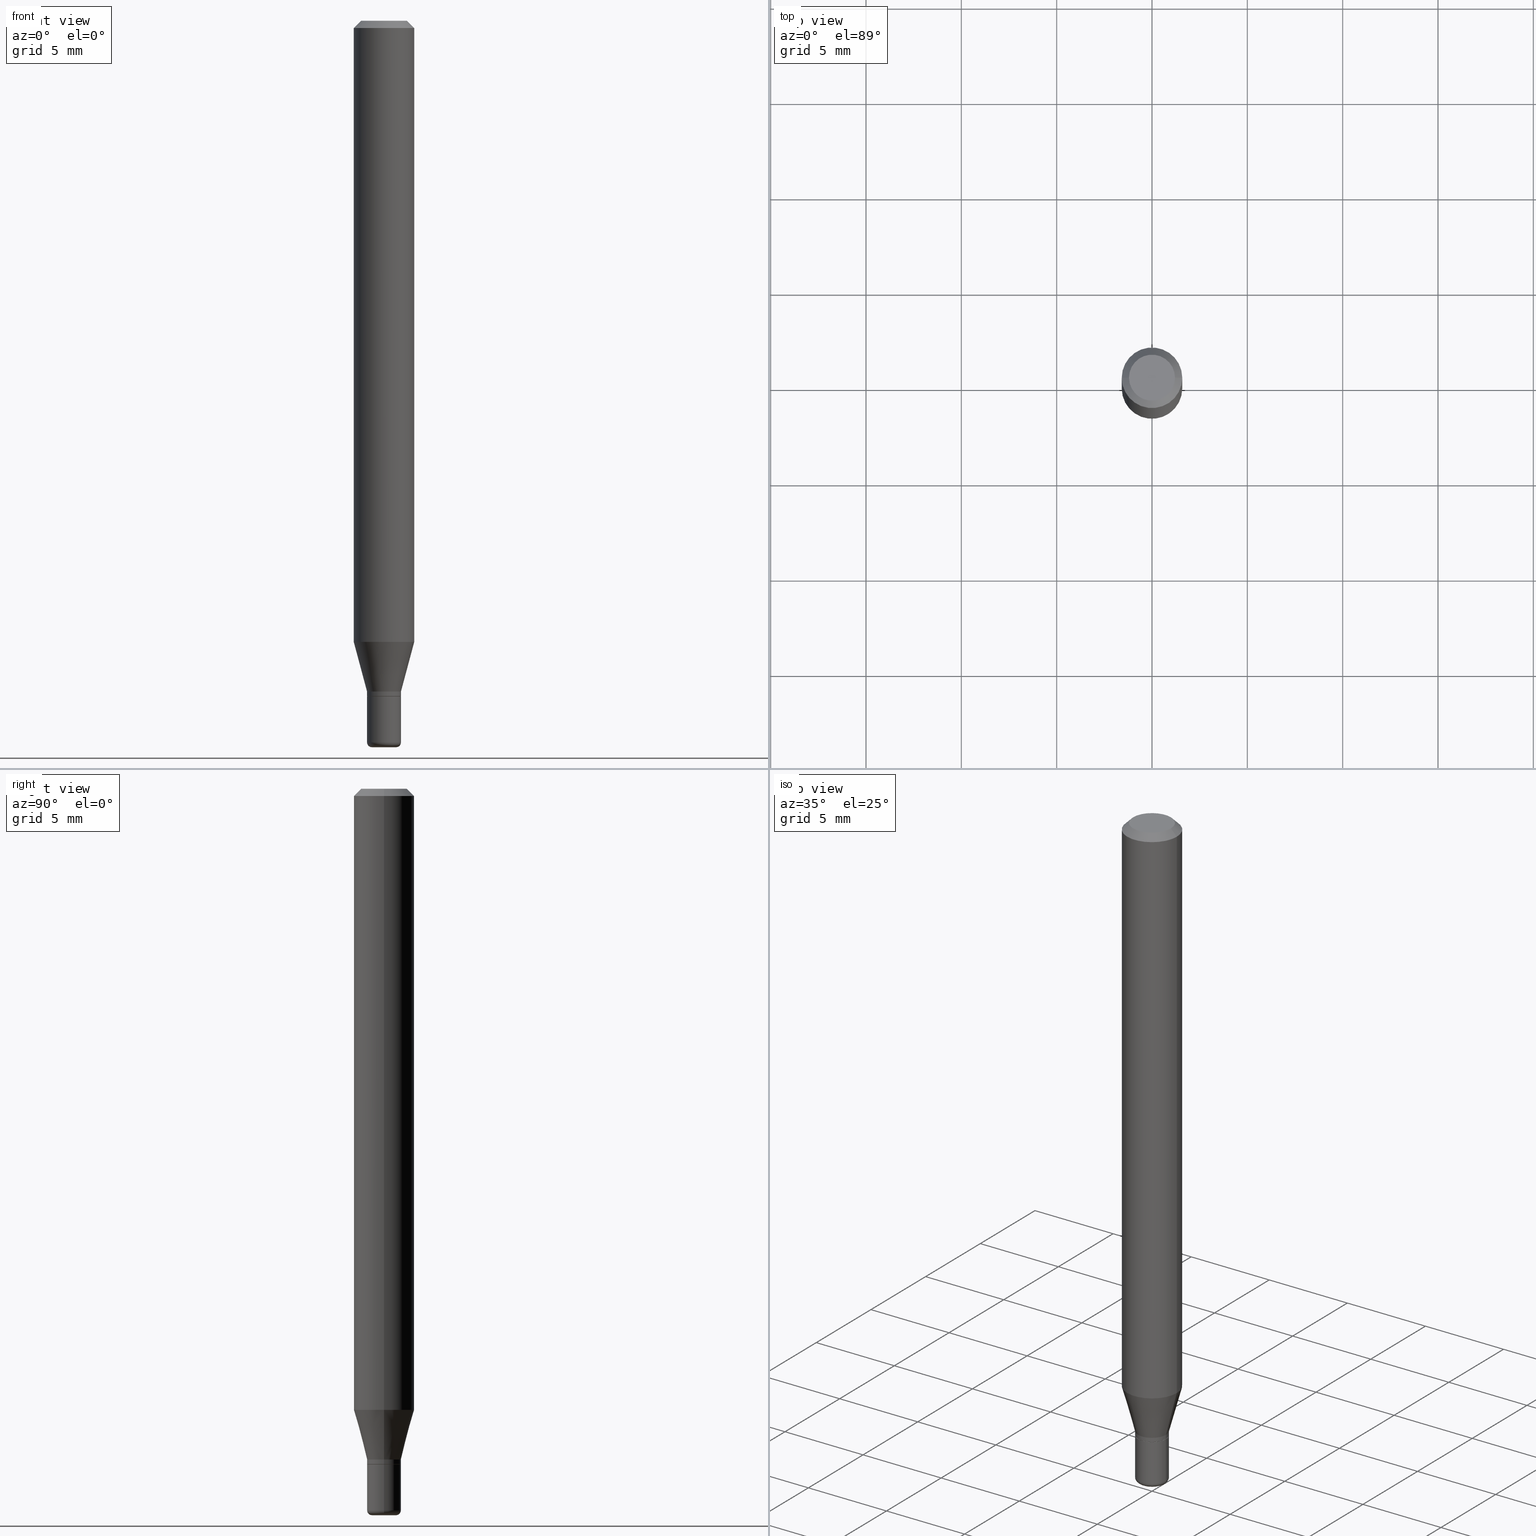
[diagram: canonical four-view strip — front | top / right | iso, engineering-drawing reading convention]
A machine part, canonical four-view strip (front | top / right | iso — engineering-drawing reading convention). The complete STEP part file that produces these views, byte-faithful:
ISO-10303-21;
HEADER;
FILE_DESCRIPTION (( 'STEP AP203' ),
    '1' );
FILE_NAME ('09032.STEP',
    '2024-02-29T21:27:11',
    ( '' ),
    ( '' ),
    'SwSTEP 2.0',
    'SolidWorks 2023',
    '' );
FILE_SCHEMA (( 'CONFIG_CONTROL_DESIGN' ));
ENDSEC;

DATA;
#1 = FACE_OUTER_BOUND ( 'NONE', #122, .T. ) ;
#2 = VERTEX_POINT ( 'NONE', #63 ) ;
#3 = APPLICATION_CONTEXT ( 'configuration controlled 3d designs of mechanical parts and assemblies' ) ;
#4 = ORIENTED_EDGE ( 'NONE', *, *, #260, .F. ) ;
#5 = EDGE_LOOP ( 'NONE', ( #254, #87 ) ) ;
#6 = DIRECTION ( 'NONE',  ( -2.445468806185136597E-29, 3.491481338843145583E-15, 1.000000000000000000 ) ) ;
#7 = DIRECTION ( 'NONE',  ( 1.000000000000000000, -6.982962677686253300E-15, 0.000000000000000000 ) ) ;
#8 = AXIS2_PLACEMENT_3D ( 'NONE', #356, #49, #236 ) ;
#9 = EDGE_LOOP ( 'NONE', ( #506, #295, #185, #302 ) ) ;
#10 = APPROVAL_STATUS ( 'not_yet_approved' ) ;
#11 = ADVANCED_FACE ( 'NONE', ( #181 ), #218, .T. ) ;
#12 = ORIENTED_EDGE ( 'NONE', *, *, #138, .T. ) ;
#13 = UNCERTAINTY_MEASURE_WITH_UNIT (LENGTH_MEASURE( 1.000000000000000082E-05 ), #478, 'distance_accuracy_value', 'NONE');
#14 = EDGE_LOOP ( 'NONE', ( #373, #55, #417, #451 ) ) ;
#15 = APPROVAL_ROLE ( '' ) ;
#16 = LINE ( 'NONE', #61, #115 ) ;
#17 = VECTOR ( 'NONE', #29, 39.37007874015748143 ) ;
#18 = ORIENTED_EDGE ( 'NONE', *, *, #382, .F. ) ;
#19 = SECURITY_CLASSIFICATION ( '', '', #215 ) ;
#20 = EDGE_CURVE ( 'NONE', #408, #93, #167, .T. ) ;
#21 = CARTESIAN_POINT ( 'NONE',  ( 0.03500000000000000333, -5.115020161405208194E-15, -1.395000000000000018 ) ) ;
#22 = CARTESIAN_POINT ( 'NONE',  ( 3.668203209277632395E-31, -5.237222008264614861E-17, -0.01499999999999970281 ) ) ;
#23 = DATE_AND_TIME ( #300, #242 ) ;
#24 = DIRECTION ( 'NONE',  ( -2.445468806185136597E-29, 3.491481338843145583E-15, 1.000000000000000000 ) ) ;
#25 = ORIENTED_EDGE ( 'NONE', *, *, #349, .T. ) ;
#26 = AXIS2_PLACEMENT_3D ( 'NONE', #283, #121, #440 ) ;
#27 = AXIS2_PLACEMENT_3D ( 'NONE', #38, #274, #40 ) ;
#28 = DIRECTION ( 'NONE',  ( 1.000000000000000000, -6.982962677686259611E-15, 4.883557194083110659E-29 ) ) ;
#29 = DIRECTION ( 'NONE',  ( 0.7071067811866199593, -2.468850131083015945E-15, 0.7071067811864750752 ) ) ;
#30 = CC_DESIGN_PERSON_AND_ORGANIZATION_ASSIGNMENT ( #455, #336, ( #393 ) ) ;
#31 = CARTESIAN_POINT ( 'NONE',  ( 0.000000000000000000, 0.000000000000000000, 0.000000000000000000 ) ) ;
#32 = CYLINDRICAL_SURFACE ( 'NONE', #485, 0.03499999999999998251 ) ;
#33 = DIRECTION ( 'NONE',  ( 1.000000000000000000, -6.982962677686266711E-15, 4.876176775795935793E-29 ) ) ;
#34 = CARTESIAN_POINT ( 'NONE',  ( 0.06250000000000000000, -4.913801213521515384E-15, -1.282368602791855938 ) ) ;
#35 = CLOSED_SHELL ( 'NONE', ( #101, #516, #421, #444, #437, #497 ) ) ;
#36 = CIRCLE ( 'NONE', #410, 0.03499999999999994782 ) ;
#37 = EDGE_CURVE ( 'NONE', #459, #304, #36, .T. ) ;
#38 = CARTESIAN_POINT ( 'NONE',  ( 2.444036937190534432E-16, 0.03499999999999513223, -1.395000000000000018 ) ) ;
#39 = DIRECTION ( 'NONE',  ( 1.000000000000000000, -6.982962677686280910E-15, 0.000000000000000000 ) ) ;
#40 = DIRECTION ( 'NONE',  ( -1.000000000000000000, 6.982962677686265922E-15, -4.876176775795935793E-29 ) ) ;
#41 = CARTESIAN_POINT ( 'NONE',  ( 0.03449999999999997513, -5.111528680066364398E-15, -1.395000000000000018 ) ) ;
#42 = COORDINATED_UNIVERSAL_TIME_OFFSET ( 5, 0, .BEHIND. ) ;
#43 = DIRECTION ( 'NONE',  ( 1.000000000000000000, -6.982962677686268288E-15, 0.000000000000000000 ) ) ;
#44 = LENGTH_MEASURE_WITH_UNIT ( LENGTH_MEASURE( 0.02539999999999999897 ), #205 );
#45 = AXIS2_PLACEMENT_3D ( 'NONE', #210, #94, #351 ) ;
#46 = FACE_OUTER_BOUND ( 'NONE', #130, .T. ) ;
#47 = ORIENTED_EDGE ( 'NONE', *, *, #95, .T. ) ;
#48 = CC_DESIGN_PERSON_AND_ORGANIZATION_ASSIGNMENT ( #447, #89, ( #67 ) ) ;
#49 = DIRECTION ( 'NONE',  ( 0.000000000000000000, 0.000000000000000000, 1.000000000000000000 ) ) ;
#50 = ADVANCED_FACE ( 'NONE', ( #337 ), #391, .T. ) ;
#51 = EDGE_CURVE ( 'NONE', #301, #212, #504, .T. ) ;
#52 = AXIS2_PLACEMENT_3D ( 'NONE', #355, #346, #74 ) ;
#53 = DIRECTION ( 'NONE',  ( 7.105427357601001859E-15, 1.000000000000000000, -3.491481338843145583E-15 ) ) ;
#54 = VECTOR ( 'NONE', #154, 39.37007874015748143 ) ;
#55 = ORIENTED_EDGE ( 'NONE', *, *, #166, .F. ) ;
#56 = APPROVAL_DATE_TIME ( #120, #466 ) ;
#57 = ORIENTED_EDGE ( 'NONE', *, *, #85, .F. ) ;
#58 = ORIENTED_EDGE ( 'NONE', *, *, #252, .T. ) ;
#59 = ADVANCED_FACE ( 'NONE', ( #148 ), #78, .T. ) ;
#60 = PERSON_AND_ORGANIZATION ( #308, #184 ) ;
#61 = CARTESIAN_POINT ( 'NONE',  ( -0.03499999999999998251, 2.486899575160349408E-16, -1.721627281589216057E-30 ) ) ;
#62 = VECTOR ( 'NONE', #80, 39.37007874015748143 ) ;
#63 = CARTESIAN_POINT ( 'NONE',  ( 0.04750000000000000749, -4.035134999187568762E-16, 2.731847993664288856E-16 ) ) ;
#64 = EDGE_LOOP ( 'NONE', ( #135, #103, #282, #90 ) ) ;
#65 = DIRECTION ( 'NONE',  ( 1.000000000000000000, -6.982962677686266711E-15, 4.876176775795935793E-29 ) ) ;
#66 = DIRECTION ( 'NONE',  ( 1.000000000000000000, -6.982962677686276966E-15, 0.000000000000000000 ) ) ;
#67 = PRODUCT_DEFINITION ( 'UNKNOWN', '', #393, #507 ) ;
#68 = DIRECTION ( 'NONE',  ( -2.445468806185136597E-29, 3.491481338843145583E-15, 1.000000000000000000 ) ) ;
#69 = TOROIDAL_SURFACE ( 'NONE', #463, 0.02500000000000000139, 0.009999999999999948166 ) ;
#70 = AXIS2_PLACEMENT_3D ( 'NONE', #234, #389, #66 ) ;
#71 = CARTESIAN_POINT ( 'NONE',  ( 0.03499999999999997558, -5.113274420735786690E-15, -1.394500000000000073 ) ) ;
#72 = CARTESIAN_POINT ( 'NONE',  ( 0.000000000000000000, 0.000000000000000000, 0.000000000000000000 ) ) ;
#73 = DIRECTION ( 'NONE',  ( -2.445468806185136597E-29, 3.491481338843145583E-15, 1.000000000000000000 ) ) ;
#74 = DIRECTION ( 'NONE',  ( 1.000000000000000000, -6.982962677686266711E-15, 4.852736867747365086E-29 ) ) ;
#75 = EDGE_CURVE ( 'NONE', #340, #408, #353, .T. ) ;
#76 = DIRECTION ( 'NONE',  ( -2.445468806185136597E-29, 3.491481338843145583E-15, 1.000000000000000000 ) ) ;
#77 = DIRECTION ( 'NONE',  ( -2.445468806185136877E-29, 3.491481338843145188E-15, 1.000000000000000000 ) ) ;
#78 = CONICAL_SURFACE ( 'NONE', #494, 0.03499999999999998251, 0.2617993877991494633 ) ;
#79 = APPROVAL_PERSON_ORGANIZATION ( #162, #466, #280 ) ;
#80 = DIRECTION ( 'NONE',  ( -2.445468806185136877E-29, 3.491481338843145188E-15, 1.000000000000000000 ) ) ;
#81 = FACE_OUTER_BOUND ( 'NONE', #299, .T. ) ;
#82 = COORDINATED_UNIVERSAL_TIME_OFFSET ( 5, 0, .BEHIND. ) ;
#83 = AXIS2_PLACEMENT_3D ( 'NONE', #465, #188, #267 ) ;
#84 = ORIENTED_EDGE ( 'NONE', *, *, #344, .F. ) ;
#85 = EDGE_CURVE ( 'NONE', #304, #459, #464, .T. ) ;
#86 = CALENDAR_DATE ( 2024, 29, 2 ) ;
#87 = ORIENTED_EDGE ( 'NONE', *, *, #382, .T. ) ;
#88 = ADVANCED_FACE ( 'NONE', ( #469 ), #223, .T. ) ;
#89 = PERSON_AND_ORGANIZATION_ROLE ( 'creator' ) ;
#90 = ORIENTED_EDGE ( 'NONE', *, *, #37, .F. ) ;
#91 = AXIS2_PLACEMENT_3D ( 'NONE', #401, #367, #7 ) ;
#92 = CC_DESIGN_APPROVAL ( #466, ( #393 ) ) ;
#93 = VERTEX_POINT ( 'NONE', #424 ) ;
#94 = DIRECTION ( 'NONE',  ( 2.445468806185136597E-29, -3.491481338843145583E-15, -1.000000000000000000 ) ) ;
#95 = EDGE_CURVE ( 'NONE', #459, #212, #155, .T. ) ;
#96 = VERTEX_POINT ( 'NONE', #436 ) ;
#97 = ORIENTED_EDGE ( 'NONE', *, *, #457, .F. ) ;
#98 = CARTESIAN_POINT ( 'NONE',  ( 3.668203209277632395E-31, -5.237222008264614861E-17, -0.01499999999999970281 ) ) ;
#99 = COORDINATED_UNIVERSAL_TIME_OFFSET ( 5, 0, .BEHIND. ) ;
#100 = VERTEX_POINT ( 'NONE', #157 ) ;
#101 = ADVANCED_FACE ( 'NONE', ( #81 ), #69, .T. ) ;
#102 = DIRECTION ( 'NONE',  ( -2.445468806185136597E-29, 3.491481338843145583E-15, 1.000000000000000000 ) ) ;
#103 = ORIENTED_EDGE ( 'NONE', *, *, #136, .T. ) ;
#104 = LINE ( 'NONE', #508, #412 ) ;
#105 = CARTESIAN_POINT ( 'NONE',  ( 3.668203209277704895E-29, -5.237222008264718177E-15, -1.500000000000000222 ) ) ;
#106 = CIRCLE ( 'NONE', #333, 0.06250000000000000000 ) ;
#107 = TOROIDAL_SURFACE ( 'NONE', #352, 0.02500000000000000139, 0.009999999999999948166 ) ;
#108 = DIRECTION ( 'NONE',  ( 1.000000000000000000, -6.982962677686280910E-15, 0.000000000000000000 ) ) ;
#109 = EDGE_CURVE ( 'NONE', #139, #408, #198, .T. ) ;
#110 = CARTESIAN_POINT ( 'NONE',  ( -0.03499999999999998251, -4.310144266548890801E-15, -1.385000000000000009 ) ) ;
#111 = DIRECTION ( 'NONE',  ( -2.445468806185136597E-29, 3.491481338843145583E-15, 1.000000000000000000 ) ) ;
#112 = DIRECTION ( 'NONE',  ( -0.2588190451025207395, 5.211531920934546309E-15, 0.9659258262890682012 ) ) ;
#113 = DIRECTION ( 'NONE',  ( 1.000000000000000000, -6.982962677686266711E-15, 4.852736867747365086E-29 ) ) ;
#114 = CARTESIAN_POINT ( 'NONE',  ( -0.06250000000000000000, 3.840629472727455270E-16, -0.01499999999999970281 ) ) ;
#115 = VECTOR ( 'NONE', #374, 39.37007874015748143 ) ;
#116 = DIRECTION ( 'NONE',  ( -2.445468806185136597E-29, 3.491481338843145583E-15, 1.000000000000000000 ) ) ;
#117 = APPROVAL_STATUS ( 'not_yet_approved' ) ;
#118 = CARTESIAN_POINT ( 'NONE',  ( 0.000000000000000000, 0.000000000000000000, 0.000000000000000000 ) ) ;
#119 = ORIENTED_EDGE ( 'NONE', *, *, #415, .T. ) ;
#120 = DATE_AND_TIME ( #238, #370 ) ;
#121 = DIRECTION ( 'NONE',  ( -6.982962677686266711E-15, -1.000000000000000000, 3.491481338843145583E-15 ) ) ;
#122 = EDGE_LOOP ( 'NONE', ( #213, #249 ) ) ;
#123 = AXIS2_PLACEMENT_3D ( 'NONE', #481, #399, #43 ) ;
#124 = AXIS2_PLACEMENT_3D ( 'NONE', #409, #53, #342 ) ;
#125 = APPROVAL_ROLE ( '' ) ;
#126 = EDGE_CURVE ( 'NONE', #93, #408, #106, .T. ) ;
#127 = ORIENTED_EDGE ( 'NONE', *, *, #380, .T. ) ;
#128 = ADVANCED_BREP_SHAPE_REPRESENTATION ( '09032', ( #179, #358, #8 ), #403 ) ;
#129 = CARTESIAN_POINT ( 'NONE',  ( 0.000000000000000000, 0.000000000000000000, 0.000000000000000000 ) ) ;
#130 = EDGE_LOOP ( 'NONE', ( #164, #264, #453, #259 ) ) ;
#131 = DIRECTION ( 'NONE',  ( -2.445468806185136597E-29, 3.491481338843145583E-15, 1.000000000000000000 ) ) ;
#132 = ORIENTED_EDGE ( 'NONE', *, *, #349, .F. ) ;
#133 = PERSON_AND_ORGANIZATION_ROLE ( 'classification_officer' ) ;
#134 = CARTESIAN_POINT ( 'NONE',  ( 3.410206250225173110E-29, -4.868870727016767513E-15, -1.394500000000000073 ) ) ;
#135 = ORIENTED_EDGE ( 'NONE', *, *, #290, .F. ) ;
#136 = EDGE_CURVE ( 'NONE', #96, #204, #360, .T. ) ;
#137 = ORIENTED_EDGE ( 'NONE', *, *, #298, .F. ) ;
#138 = EDGE_CURVE ( 'NONE', #100, #199, #176, .T. ) ;
#139 = VERTEX_POINT ( 'NONE', #195 ) ;
#140 = AXIS2_PLACEMENT_3D ( 'NONE', #98, #499, #501 ) ;
#141 = AXIS2_PLACEMENT_3D ( 'NONE', #392, #354, #515 ) ;
#142 = ORIENTED_EDGE ( 'NONE', *, *, #85, .T. ) ;
#143 = EDGE_CURVE ( 'NONE', #289, #411, #235, .T. ) ;
#144 = CARTESIAN_POINT ( 'NONE',  ( 3.135992416158701602E-29, -4.477366046166122926E-15, -1.282368602791855938 ) ) ;
#145 = EDGE_LOOP ( 'NONE', ( #258, #127, #182, #491 ) ) ;
#146 = PRODUCT ( '09032', '09032', '', ( #287 ) ) ;
#147 = DIRECTION ( 'NONE',  ( -2.445468806185136597E-29, 3.491481338843145583E-15, 1.000000000000000000 ) ) ;
#148 = FACE_OUTER_BOUND ( 'NONE', #209, .T. ) ;
#149 = EDGE_CURVE ( 'NONE', #139, #217, #511, .T. ) ;
#150 = DIRECTION ( 'NONE',  ( -2.445468806185136877E-29, 3.491481338843145188E-15, 1.000000000000000000 ) ) ;
#151 = CARTESIAN_POINT ( 'NONE',  ( 3.643748521215853910E-29, -5.202307194876288105E-15, -1.490000000000000213 ) ) ;
#152 = VECTOR ( 'NONE', #316, 39.37007874015748143 ) ;
#153 = VECTOR ( 'NONE', #150, 39.37007874015748143 ) ;
#154 = DIRECTION ( 'NONE',  ( -0.7071067811866199593, 7.493145998870616062E-15, 0.7071067811864750752 ) ) ;
#155 = LINE ( 'NONE', #386, #368 ) ;
#156 = CARTESIAN_POINT ( 'NONE',  ( -6.680649051745406845E-45, 9.538196290434862081E-31, 2.731847993664263218E-16 ) ) ;
#157 = CARTESIAN_POINT ( 'NONE',  ( 0.03499999999999998251, -5.080105348016776545E-15, -1.385000000000000009 ) ) ;
#158 = DIRECTION ( 'NONE',  ( 1.000000000000000000, -6.982962677686265922E-15, 4.876176775795935793E-29 ) ) ;
#159 = CARTESIAN_POINT ( 'NONE',  ( -0.06250000000000000000, 4.440892098500626162E-16, -3.074334431409316114E-30 ) ) ;
#160 = CIRCLE ( 'NONE', #124, 0.009999999999999948166 ) ;
#161 = CONICAL_SURFACE ( 'NONE', #141, 0.03499999999999998251, 0.2617993877991494633 ) ;
#162 = PERSON_AND_ORGANIZATION ( #308, #184 ) ;
#163 = EDGE_LOOP ( 'NONE', ( #297, #362, #416, #202 ) ) ;
#164 = ORIENTED_EDGE ( 'NONE', *, *, #334, .T. ) ;
#165 = FACE_OUTER_BOUND ( 'NONE', #446, .T. ) ;
#166 = EDGE_CURVE ( 'NONE', #340, #2, #192, .T. ) ;
#167 = CIRCLE ( 'NONE', #326, 0.06250000000000000000 ) ;
#168 = AXIS2_PLACEMENT_3D ( 'NONE', #220, #111, #108 ) ;
#169 = APPROVAL_DATE_TIME ( #245, #406 ) ;
#170 = CARTESIAN_POINT ( 'NONE',  ( 3.411428984628265351E-29, -4.870616467686188228E-15, -1.395000000000000018 ) ) ;
#171 = EDGE_LOOP ( 'NONE', ( #372, #413 ) ) ;
#172 = ORIENTED_EDGE ( 'NONE', *, *, #228, .T. ) ;
#173 = ORIENTED_EDGE ( 'NONE', *, *, #268, .T. ) ;
#174 = PRODUCT_RELATED_PRODUCT_CATEGORY ( 'detail', '', ( #146 ) ) ;
#175 = AXIS2_PLACEMENT_3D ( 'NONE', #72, #310, #278 ) ;
#176 = CIRCLE ( 'NONE', #240, 0.03499999999999998251 ) ;
#177 = AXIS2_PLACEMENT_3D ( 'NONE', #488, #6, #324 ) ;
#178 = DIRECTION ( 'NONE',  ( -2.445468806185136597E-29, 3.491481338843145583E-15, 1.000000000000000000 ) ) ;
#179 = MANIFOLD_SOLID_BREP ( 'Body-Move/Copy2[1]', #35 ) ;
#180 = CARTESIAN_POINT ( 'NONE',  ( 0.03499999999999994782, -5.446710888595306494E-15, -1.490000000000000213 ) ) ;
#181 = FACE_OUTER_BOUND ( 'NONE', #9, .T. ) ;
#182 = ORIENTED_EDGE ( 'NONE', *, *, #126, .T. ) ;
#183 = AXIS2_PLACEMENT_3D ( 'NONE', #322, #237, #206 ) ;
#184 = ORGANIZATION ( 'UNSPECIFIED', 'UNSPECIFIED', '' ) ;
#185 = ORIENTED_EDGE ( 'NONE', *, *, #126, .F. ) ;
#186 = CARTESIAN_POINT ( 'NONE',  ( 0.03499999999999998251, -2.444036937190191771E-16, 1.706661871528576757E-30 ) ) ;
#187 = CARTESIAN_POINT ( 'NONE',  ( 3.135992416158701602E-29, -4.477366046166122926E-15, -1.282368602791855938 ) ) ;
#188 = DIRECTION ( 'NONE',  ( -2.438088387897960049E-29, 3.491481338843145188E-15, 1.000000000000000000 ) ) ;
#189 = DIRECTION ( 'NONE',  ( 1.000000000000000000, -6.982962677686265922E-15, 4.876176775795935793E-29 ) ) ;
#190 = LINE ( 'NONE', #513, #54 ) ;
#191 = LINE ( 'NONE', #312, #350 ) ;
#192 = CIRCLE ( 'NONE', #52, 0.04750000000000000749 ) ;
#193 = AXIS2_PLACEMENT_3D ( 'NONE', #319, #445, #158 ) ;
#194 = LINE ( 'NONE', #461, #251 ) ;
#195 = CARTESIAN_POINT ( 'NONE',  ( -0.06250000000000000000, -4.033276836316059521E-15, -1.282368602791855938 ) ) ;
#196 = CARTESIAN_POINT ( 'NONE',  ( -0.03449999999999997513, -4.622829996674842639E-15, -1.395000000000000018 ) ) ;
#197 = ADVANCED_FACE ( 'NONE', ( #388 ), #32, .T. ) ;
#198 = LINE ( 'NONE', #159, #152 ) ;
#199 = VERTEX_POINT ( 'NONE', #110 ) ;
#200 = PERSON_AND_ORGANIZATION ( #308, #184 ) ;
#201 = FACE_OUTER_BOUND ( 'NONE', #285, .T. ) ;
#202 = ORIENTED_EDGE ( 'NONE', *, *, #20, .F. ) ;
#203 =( NAMED_UNIT ( * ) SI_UNIT ( $, .STERADIAN. ) SOLID_ANGLE_UNIT ( ) );
#204 = VERTEX_POINT ( 'NONE', #514 ) ;
#205 =( LENGTH_UNIT ( ) NAMED_UNIT ( * ) SI_UNIT ( $, .METRE. ) );
#206 = DIRECTION ( 'NONE',  ( -1.000000000000000000, 6.982962677686265922E-15, -4.876176775795935793E-29 ) ) ;
#207 = ORIENTED_EDGE ( 'NONE', *, *, #143, .T. ) ;
#208 = LOCAL_TIME ( 16, 27, 11.00000000000000000, #414 ) ;
#209 = EDGE_LOOP ( 'NONE', ( #449, #119, #482, #331 ) ) ;
#210 = CARTESIAN_POINT ( 'NONE',  ( 3.668203209277632395E-31, -5.237222008264614861E-17, -0.01499999999999970281 ) ) ;
#211 = CC_DESIGN_PERSON_AND_ORGANIZATION_ASSIGNMENT ( #294, #256, ( #393 ) ) ;
#212 = VERTEX_POINT ( 'NONE', #227 ) ;
#213 = ORIENTED_EDGE ( 'NONE', *, *, #268, .F. ) ;
#214 = EDGE_CURVE ( 'NONE', #411, #292, #284, .T. ) ;
#215 = SECURITY_CLASSIFICATION_LEVEL ( 'unclassified' ) ;
#216 = CC_DESIGN_APPROVAL ( #406, ( #67 ) ) ;
#217 = VERTEX_POINT ( 'NONE', #34 ) ;
#218 = CYLINDRICAL_SURFACE ( 'NONE', #269, 0.06250000000000000000 ) ;
#219 = DIRECTION ( 'NONE',  ( -2.445468806185136597E-29, 3.491481338843145583E-15, 1.000000000000000000 ) ) ;
#220 = CARTESIAN_POINT ( 'NONE',  ( 3.386974296566414366E-29, -4.835701654297756579E-15, -1.385000000000000009 ) ) ;
#221 = AXIS2_PLACEMENT_3D ( 'NONE', #170, #329, #291 ) ;
#222 = CONICAL_SURFACE ( 'NONE', #177, 0.03449999999999997513, 0.7853981633975507526 ) ;
#223 = CYLINDRICAL_SURFACE ( 'NONE', #175, 0.06250000000000000000 ) ;
#224 = FACE_OUTER_BOUND ( 'NONE', #64, .T. ) ;
#225 = DIRECTION ( 'NONE',  ( 1.000000000000000000, -6.982962677686253300E-15, 0.000000000000000000 ) ) ;
#226 = CARTESIAN_POINT ( 'NONE',  ( 0.03499999999999998251, -5.080105348016776545E-15, -1.385000000000000009 ) ) ;
#227 = CARTESIAN_POINT ( 'NONE',  ( -0.03499999999999999639, -4.787771873765202881E-15, -1.395000000000000018 ) ) ;
#228 = EDGE_CURVE ( 'NONE', #199, #139, #191, .T. ) ;
#229 = FACE_OUTER_BOUND ( 'NONE', #489, .T. ) ;
#230 = CARTESIAN_POINT ( 'NONE',  ( 3.386974296566414366E-29, -4.835701654297756579E-15, -1.385000000000000009 ) ) ;
#231 = AXIS2_PLACEMENT_3D ( 'NONE', #151, #428, #271 ) ;
#232 = AXIS2_PLACEMENT_3D ( 'NONE', #156, #313, #113 ) ;
#233 = ADVANCED_FACE ( 'NONE', ( #314 ), #281, .T. ) ;
#234 = CARTESIAN_POINT ( 'NONE',  ( 3.411428984628265351E-29, -4.870616467686188228E-15, -1.395000000000000018 ) ) ;
#235 = LINE ( 'NONE', #41, #17 ) ;
#236 = DIRECTION ( 'NONE',  ( 1.000000000000000000, 0.000000000000000000, 0.000000000000000000 ) ) ;
#237 = DIRECTION ( 'NONE',  ( 2.438088387897960049E-29, -3.491481338843145188E-15, -1.000000000000000000 ) ) ;
#238 = CALENDAR_DATE ( 2024, 29, 2 ) ;
#239 = ADVANCED_FACE ( 'NONE', ( #201 ), #407, .F. ) ;
#240 = AXIS2_PLACEMENT_3D ( 'NONE', #348, #394, #39 ) ;
#241 = EDGE_LOOP ( 'NONE', ( #454, #266, #323, #404 ) ) ;
#242 = LOCAL_TIME ( 16, 27, 11.00000000000000000, #99 ) ;
#243 = DIRECTION ( 'NONE',  ( 1.000000000000000000, -6.982962677686266711E-15, 4.876176775795935793E-29 ) ) ;
#244 = ORIENTED_EDGE ( 'NONE', *, *, #473, .T. ) ;
#245 = DATE_AND_TIME ( #86, #443 ) ;
#246 = DIRECTION ( 'NONE',  ( 1.000000000000000000, -6.982962677686265922E-15, 4.876176775795935793E-29 ) ) ;
#247 = ORIENTED_EDGE ( 'NONE', *, *, #95, .F. ) ;
#248 = CYLINDRICAL_SURFACE ( 'NONE', #384, 0.03499999999999997558 ) ;
#249 = ORIENTED_EDGE ( 'NONE', *, *, #136, .F. ) ;
#250 = CIRCLE ( 'NONE', #123, 0.03449999999999997513 ) ;
#251 = VECTOR ( 'NONE', #277, 39.37007874015748143 ) ;
#252 = EDGE_CURVE ( 'NONE', #369, #289, #250, .T. ) ;
#253 = FACE_OUTER_BOUND ( 'NONE', #145, .T. ) ;
#254 = ORIENTED_EDGE ( 'NONE', *, *, #51, .T. ) ;
#255 = APPLICATION_CONTEXT ( 'configuration controlled 3d designs of mechanical parts and assemblies' ) ;
#256 = PERSON_AND_ORGANIZATION_ROLE ( 'design_supplier' ) ;
#257 = CARTESIAN_POINT ( 'NONE',  ( -0.03499999999999997558, -4.620180769500732227E-15, -1.394500000000000073 ) ) ;
#258 = ORIENTED_EDGE ( 'NONE', *, *, #473, .F. ) ;
#259 = ORIENTED_EDGE ( 'NONE', *, *, #143, .F. ) ;
#260 = EDGE_CURVE ( 'NONE', #204, #304, #418, .T. ) ;
#261 = AXIS2_PLACEMENT_3D ( 'NONE', #390, #116, #275 ) ;
#262 = AXIS2_PLACEMENT_3D ( 'NONE', #144, #102, #395 ) ;
#263 = CARTESIAN_POINT ( 'NONE',  ( 3.411428984628265351E-29, -4.870616467686188228E-15, -1.395000000000000018 ) ) ;
#264 = ORIENTED_EDGE ( 'NONE', *, *, #457, .T. ) ;
#265 = DIRECTION ( 'NONE',  ( 0.7071067811865479058, -7.319954787623257623E-15, -0.7071067811865471286 ) ) ;
#266 = ORIENTED_EDGE ( 'NONE', *, *, #298, .T. ) ;
#267 = DIRECTION ( 'NONE',  ( 1.000000000000000000, -6.982962677686265922E-15, 4.876176775795935793E-29 ) ) ;
#268 = EDGE_CURVE ( 'NONE', #204, #96, #317, .T. ) ;
#269 = AXIS2_PLACEMENT_3D ( 'NONE', #495, #378, #65 ) ;
#270 = CIRCLE ( 'NONE', #512, 0.03499999999999997558 ) ;
#271 = DIRECTION ( 'NONE',  ( 1.000000000000000000, -6.982962677686259611E-15, 0.000000000000000000 ) ) ;
#272 = FACE_OUTER_BOUND ( 'NONE', #338, .T. ) ;
#273 = DIRECTION ( 'NONE',  ( 1.000000000000000000, -6.982962677686266711E-15, 0.000000000000000000 ) ) ;
#274 = DIRECTION ( 'NONE',  ( 2.438088387897960049E-29, -3.491481338843145188E-15, -1.000000000000000000 ) ) ;
#275 = DIRECTION ( 'NONE',  ( 1.000000000000000000, -6.982962677686254089E-15, 0.000000000000000000 ) ) ;
#276 = ADVANCED_FACE ( 'NONE', ( #46 ), #450, .T. ) ;
#277 = DIRECTION ( 'NONE',  ( -2.445468806185136877E-29, 3.491481338843145188E-15, 1.000000000000000000 ) ) ;
#278 = DIRECTION ( 'NONE',  ( 1.000000000000000000, -6.982962677686266711E-15, 4.876176775795935793E-29 ) ) ;
#279 = VECTOR ( 'NONE', #433, 39.37007874015748143 ) ;
#280 = APPROVAL_ROLE ( '' ) ;
#281 = CYLINDRICAL_SURFACE ( 'NONE', #474, 0.03499999999999998251 ) ;
#282 = ORIENTED_EDGE ( 'NONE', *, *, #260, .T. ) ;
#283 = CARTESIAN_POINT ( 'NONE',  ( 0.02500000000000000139, -5.376881261818443984E-15, -1.490000000000000213 ) ) ;
#284 = CIRCLE ( 'NONE', #261, 0.03499999999999997558 ) ;
#285 = EDGE_LOOP ( 'NONE', ( #343, #244 ) ) ;
#286 = CIRCLE ( 'NONE', #262, 0.06250000000000000000 ) ;
#287 = MECHANICAL_CONTEXT ( 'NONE', #3, 'mechanical' ) ;
#288 = DIRECTION ( 'NONE',  ( -2.445468806185136597E-29, 3.491481338843145583E-15, 1.000000000000000000 ) ) ;
#289 = VERTEX_POINT ( 'NONE', #448 ) ;
#290 = EDGE_CURVE ( 'NONE', #96, #459, #160, .T. ) ;
#291 = DIRECTION ( 'NONE',  ( 1.000000000000000000, -6.982962677686268288E-15, 0.000000000000000000 ) ) ;
#292 = VERTEX_POINT ( 'NONE', #257 ) ;
#293 = EDGE_CURVE ( 'NONE', #292, #199, #16, .T. ) ;
#294 = PERSON_AND_ORGANIZATION ( #308, #184 ) ;
#295 = ORIENTED_EDGE ( 'NONE', *, *, #109, .T. ) ;
#296 = AXIS2_PLACEMENT_3D ( 'NONE', #263, #219, #420 ) ;
#297 = ORIENTED_EDGE ( 'NONE', *, *, #109, .F. ) ;
#298 = EDGE_CURVE ( 'NONE', #292, #411, #270, .T. ) ;
#299 = EDGE_LOOP ( 'NONE', ( #173, #441, #57, #4 ) ) ;
#300 = CALENDAR_DATE ( 2024, 29, 2 ) ;
#301 = VERTEX_POINT ( 'NONE', #21 ) ;
#302 = ORIENTED_EDGE ( 'NONE', *, *, #365, .F. ) ;
#303 = PLANE ( 'NONE',  #83 ) ;
#304 = VERTEX_POINT ( 'NONE', #180 ) ;
#305 = CC_DESIGN_DATE_AND_TIME_ASSIGNMENT ( #23, #339, ( #19 ) ) ;
#306 = FACE_OUTER_BOUND ( 'NONE', #171, .T. ) ;
#307 = CARTESIAN_POINT ( 'NONE',  ( 3.668203209277632395E-31, -5.237222008264614861E-17, -0.01499999999999970281 ) ) ;
#308 = PERSON ( 'UNSPECIFIED', 'UNSPECIFIED', 'UNSPECIFIED', ('UNSPECIFIED'), ('UNSPECIFIED'), ('UNSPECIFIED') ) ;
#309 = CARTESIAN_POINT ( 'NONE',  ( 0.03499999999999997558, -2.444036937190191771E-16, 1.706661871528576406E-30 ) ) ;
#310 = DIRECTION ( 'NONE',  ( -2.445468806185136597E-29, 3.491481338843145583E-15, 1.000000000000000000 ) ) ;
#311 = CARTESIAN_POINT ( 'NONE',  ( -0.03499999999999994782, -4.787771873765202881E-15, -1.490000000000000213 ) ) ;
#312 = CARTESIAN_POINT ( 'NONE',  ( -0.03499999999999998251, -4.587011696781721293E-15, -1.385000000000000009 ) ) ;
#313 = DIRECTION ( 'NONE',  ( -2.445468806185136597E-29, 3.491481338843145583E-15, 1.000000000000000000 ) ) ;
#314 = FACE_OUTER_BOUND ( 'NONE', #327, .T. ) ;
#315 = APPLICATION_PROTOCOL_DEFINITION ( 'international standard', 'config_control_design', 1994, #255 ) ;
#316 = DIRECTION ( 'NONE',  ( -2.445468806185136877E-29, 3.491481338843145188E-15, 1.000000000000000000 ) ) ;
#317 = CIRCLE ( 'NONE', #91, 0.02500000000000000486 ) ;
#318 = LOCAL_TIME ( 16, 27, 11.00000000000000000, #42 ) ;
#319 = CARTESIAN_POINT ( 'NONE',  ( 3.582686580359766038E-29, -5.359686688179453325E-15, -1.500000000000000222 ) ) ;
#320 = ADVANCED_FACE ( 'NONE', ( #253 ), #496, .T. ) ;
#321 = PERSON_AND_ORGANIZATION_ROLE ( 'design_owner' ) ;
#322 = CARTESIAN_POINT ( 'NONE',  ( 3.316907271900976589E-16, 0.04750000000000000749, -2.925296391183627249E-17 ) ) ;
#323 = ORIENTED_EDGE ( 'NONE', *, *, #325, .T. ) ;
#324 = DIRECTION ( 'NONE',  ( 1.000000000000000000, -6.982962677686268288E-15, 0.000000000000000000 ) ) ;
#325 = EDGE_CURVE ( 'NONE', #411, #100, #434, .T. ) ;
#326 = AXIS2_PLACEMENT_3D ( 'NONE', #22, #178, #456 ) ;
#327 = EDGE_LOOP ( 'NONE', ( #332, #487, #383, #422 ) ) ;
#328 = PLANE ( 'NONE',  #193 ) ;
#329 = DIRECTION ( 'NONE',  ( -2.445468806185136597E-29, 3.491481338843145583E-15, 1.000000000000000000 ) ) ;
#330 = CC_DESIGN_PERSON_AND_ORGANIZATION_ASSIGNMENT ( #200, #321, ( #146 ) ) ;
#331 = ORIENTED_EDGE ( 'NONE', *, *, #149, .F. ) ;
#332 = ORIENTED_EDGE ( 'NONE', *, *, #214, .T. ) ;
#333 = AXIS2_PLACEMENT_3D ( 'NONE', #307, #68, #273 ) ;
#334 = EDGE_CURVE ( 'NONE', #289, #369, #341, .T. ) ;
#335 = CIRCLE ( 'NONE', #168, 0.03499999999999998251 ) ;
#336 = PERSON_AND_ORGANIZATION_ROLE ( 'creator' ) ;
#337 = FACE_OUTER_BOUND ( 'NONE', #14, .T. ) ;
#338 = EDGE_LOOP ( 'NONE', ( #247, #460, #25, #18 ) ) ;
#339 = DATE_TIME_ROLE ( 'classification_date' ) ;
#340 = VERTEX_POINT ( 'NONE', #509 ) ;
#341 = CIRCLE ( 'NONE', #486, 0.03449999999999997513 ) ;
#342 = DIRECTION ( 'NONE',  ( -1.000000000000000000, 7.105427357600962416E-15, 0.000000000000000000 ) ) ;
#343 = ORIENTED_EDGE ( 'NONE', *, *, #166, .T. ) ;
#344 = EDGE_CURVE ( 'NONE', #217, #139, #286, .T. ) ;
#345 = DIRECTION ( 'NONE',  ( 1.000000000000000000, -6.982962677686268288E-15, 0.000000000000000000 ) ) ;
#346 = DIRECTION ( 'NONE',  ( -2.445468806185136597E-29, 3.491481338843145583E-15, 1.000000000000000000 ) ) ;
#347 = PLANE ( 'NONE',  #27 ) ;
#348 = CARTESIAN_POINT ( 'NONE',  ( 3.386974296566414366E-29, -4.835701654297756579E-15, -1.385000000000000009 ) ) ;
#349 = EDGE_CURVE ( 'NONE', #304, #301, #471, .T. ) ;
#350 = VECTOR ( 'NONE', #112, 39.37007874015748854 ) ;
#351 = DIRECTION ( 'NONE',  ( -1.000000000000000000, 6.982962677686266711E-15, 0.000000000000000000 ) ) ;
#352 = AXIS2_PLACEMENT_3D ( 'NONE', #387, #76, #28 ) ;
#353 = LINE ( 'NONE', #114, #279 ) ;
#354 = DIRECTION ( 'NONE',  ( -2.445468806185136597E-29, 3.491481338843145583E-15, 1.000000000000000000 ) ) ;
#355 = CARTESIAN_POINT ( 'NONE',  ( -6.680649051745406845E-45, 9.538196290434862081E-31, 2.731847993664263218E-16 ) ) ;
#356 = CARTESIAN_POINT ( 'NONE',  ( 0.000000000000000000, 0.000000000000000000, 0.000000000000000000 ) ) ;
#357 = DIRECTION ( 'NONE',  ( 1.000000000000000000, -6.982962677686280910E-15, 0.000000000000000000 ) ) ;
#358 = MANIFOLD_SOLID_BREP ( 'Body-Move/Copy2[2]', #483 ) ;
#359 = DATE_TIME_ROLE ( 'creation_date' ) ;
#360 = CIRCLE ( 'NONE', #402, 0.02500000000000000486 ) ;
#361 = ORIENTED_EDGE ( 'NONE', *, *, #427, .F. ) ;
#362 = ORIENTED_EDGE ( 'NONE', *, *, #149, .T. ) ;
#363 =( NAMED_UNIT ( * ) PLANE_ANGLE_UNIT ( ) SI_UNIT ( $, .RADIAN. ) );
#364 = ORIENTED_EDGE ( 'NONE', *, *, #51, .F. ) ;
#365 = EDGE_CURVE ( 'NONE', #217, #93, #194, .T. ) ;
#366 = DIMENSIONAL_EXPONENTS ( 1.000000000000000000, 0.000000000000000000, 0.000000000000000000, 0.000000000000000000, 0.000000000000000000, 0.000000000000000000, 0.000000000000000000 ) ;
#367 = DIRECTION ( 'NONE',  ( -2.445468806185136597E-29, 3.491481338843145583E-15, 1.000000000000000000 ) ) ;
#368 = VECTOR ( 'NONE', #77, 39.37007874015748143 ) ;
#369 = VERTEX_POINT ( 'NONE', #196 ) ;
#370 = LOCAL_TIME ( 16, 27, 11.00000000000000000, #82 ) ;
#371 = SHAPE_DEFINITION_REPRESENTATION ( #430, #128 ) ;
#372 = ORIENTED_EDGE ( 'NONE', *, *, #334, .F. ) ;
#373 = ORIENTED_EDGE ( 'NONE', *, *, #380, .F. ) ;
#374 = DIRECTION ( 'NONE',  ( -2.445468806185136877E-29, 3.491481338843145188E-15, 1.000000000000000000 ) ) ;
#375 = DIRECTION ( 'NONE',  ( 1.000000000000000000, -6.982962677686259611E-15, 0.000000000000000000 ) ) ;
#376 = AXIS2_PLACEMENT_3D ( 'NONE', #187, #431, #467 ) ;
#377 = CIRCLE ( 'NONE', #70, 0.03500000000000000333 ) ;
#378 = DIRECTION ( 'NONE',  ( -2.445468806185136597E-29, 3.491481338843145583E-15, 1.000000000000000000 ) ) ;
#379 = PERSON_AND_ORGANIZATION ( #308, #184 ) ;
#380 = EDGE_CURVE ( 'NONE', #2, #93, #104, .T. ) ;
#381 = CARTESIAN_POINT ( 'NONE',  ( 3.643748521215853910E-29, -5.202307194876288105E-15, -1.490000000000000213 ) ) ;
#382 = EDGE_CURVE ( 'NONE', #212, #301, #377, .T. ) ;
#383 = ORIENTED_EDGE ( 'NONE', *, *, #138, .F. ) ;
#384 = AXIS2_PLACEMENT_3D ( 'NONE', #129, #438, #243 ) ;
#385 = FACE_OUTER_BOUND ( 'NONE', #5, .T. ) ;
#386 = CARTESIAN_POINT ( 'NONE',  ( -0.03499999999999997558, 2.486899575160348915E-16, -1.721627281589215706E-30 ) ) ;
#387 = CARTESIAN_POINT ( 'NONE',  ( 3.643748521215853910E-29, -5.202307194876288105E-15, -1.490000000000000213 ) ) ;
#388 = FACE_OUTER_BOUND ( 'NONE', #241, .T. ) ;
#389 = DIRECTION ( 'NONE',  ( -2.445468806185136597E-29, 3.491481338843145583E-15, 1.000000000000000000 ) ) ;
#390 = CARTESIAN_POINT ( 'NONE',  ( 3.410206250225173110E-29, -4.868870727016767513E-15, -1.394500000000000073 ) ) ;
#391 = CONICAL_SURFACE ( 'NONE', #140, 0.06250000000000000000, 0.7853981633974488341 ) ;
#392 = CARTESIAN_POINT ( 'NONE',  ( 3.386974296566414366E-29, -4.835701654297756579E-15, -1.385000000000000009 ) ) ;
#393 = PRODUCT_DEFINITION_FORMATION_WITH_SPECIFIED_SOURCE ( 'ANY', '', #146, .NOT_KNOWN. ) ;
#394 = DIRECTION ( 'NONE',  ( -2.445468806185136597E-29, 3.491481338843145583E-15, 1.000000000000000000 ) ) ;
#395 = DIRECTION ( 'NONE',  ( 1.000000000000000000, -6.982962677686262766E-15, 0.000000000000000000 ) ) ;
#396 = DIRECTION ( 'NONE',  ( -2.445468806185136597E-29, 3.491481338843145583E-15, 1.000000000000000000 ) ) ;
#397 = COORDINATED_UNIVERSAL_TIME_OFFSET ( 5, 0, .BEHIND. ) ;
#398 = CC_DESIGN_PERSON_AND_ORGANIZATION_ASSIGNMENT ( #379, #133, ( #19 ) ) ;
#399 = DIRECTION ( 'NONE',  ( -2.445468806185136597E-29, 3.491481338843145583E-15, 1.000000000000000000 ) ) ;
#400 = APPROVAL_STATUS ( 'not_yet_approved' ) ;
#401 = CARTESIAN_POINT ( 'NONE',  ( 3.668203209277704895E-29, -5.237222008264718177E-15, -1.500000000000000222 ) ) ;
#402 = AXIS2_PLACEMENT_3D ( 'NONE', #105, #472, #225 ) ;
#403 =( GEOMETRIC_REPRESENTATION_CONTEXT ( 3 ) GLOBAL_UNCERTAINTY_ASSIGNED_CONTEXT ( ( #13 ) ) GLOBAL_UNIT_ASSIGNED_CONTEXT ( ( #478, #363, #203 ) ) REPRESENTATION_CONTEXT ( 'NONE', 'WORKASPACE' ) );
#404 = ORIENTED_EDGE ( 'NONE', *, *, #415, .F. ) ;
#405 = ADVANCED_FACE ( 'NONE', ( #306 ), #303, .F. ) ;
#406 = APPROVAL ( #400, 'UNSPECIFIED' ) ;
#407 = PLANE ( 'NONE',  #183 ) ;
#408 = VERTEX_POINT ( 'NONE', #426 ) ;
#409 = CARTESIAN_POINT ( 'NONE',  ( -0.02500000000000000139, -5.024671510936262901E-15, -1.490000000000000213 ) ) ;
#410 = AXIS2_PLACEMENT_3D ( 'NONE', #381, #24, #375 ) ;
#411 = VERTEX_POINT ( 'NONE', #71 ) ;
#412 = VECTOR ( 'NONE', #265, 39.37007874015748143 ) ;
#413 = ORIENTED_EDGE ( 'NONE', *, *, #252, .F. ) ;
#414 = COORDINATED_UNIVERSAL_TIME_OFFSET ( 5, 0, .BEHIND. ) ;
#415 = EDGE_CURVE ( 'NONE', #199, #100, #335, .T. ) ;
#416 = ORIENTED_EDGE ( 'NONE', *, *, #365, .T. ) ;
#417 = ORIENTED_EDGE ( 'NONE', *, *, #75, .T. ) ;
#418 = CIRCLE ( 'NONE', #26, 0.009999999999999948166 ) ;
#419 = CIRCLE ( 'NONE', #232, 0.04750000000000000749 ) ;
#420 = DIRECTION ( 'NONE',  ( 1.000000000000000000, -6.982962677686276966E-15, 0.000000000000000000 ) ) ;
#421 = ADVANCED_FACE ( 'NONE', ( #385 ), #347, .F. ) ;
#422 = ORIENTED_EDGE ( 'NONE', *, *, #325, .F. ) ;
#423 = DIRECTION ( 'NONE',  ( 0.2588190451025207395, 1.565188264969626109E-15, 0.9659258262890682012 ) ) ;
#424 = CARTESIAN_POINT ( 'NONE',  ( 0.06250000000000000000, -4.888073874380378612E-16, -0.01499999999999970281 ) ) ;
#425 = APPROVAL_PERSON_ORGANIZATION ( #484, #406, #125 ) ;
#426 = CARTESIAN_POINT ( 'NONE',  ( -0.06250000000000000000, -1.820779923274321795E-15, -0.01499999999999970281 ) ) ;
#427 = EDGE_CURVE ( 'NONE', #100, #217, #468, .T. ) ;
#428 = DIRECTION ( 'NONE',  ( -2.445468806185136597E-29, 3.491481338843145583E-15, 1.000000000000000000 ) ) ;
#429 = CARTESIAN_POINT ( 'NONE',  ( 3.411428984628265351E-29, -4.870616467686188228E-15, -1.395000000000000018 ) ) ;
#430 = PRODUCT_DEFINITION_SHAPE ( 'NONE', 'NONE',  #67 ) ;
#431 = DIRECTION ( 'NONE',  ( -2.445468806185136597E-29, 3.491481338843145583E-15, 1.000000000000000000 ) ) ;
#432 = CYLINDRICAL_SURFACE ( 'NONE', #476, 0.03499999999999997558 ) ;
#433 = DIRECTION ( 'NONE',  ( -0.7071067811865479058, 2.468850131082261005E-15, -0.7071067811865471286 ) ) ;
#434 = LINE ( 'NONE', #186, #62 ) ;
#435 = APPROVAL_PERSON_ORGANIZATION ( #60, #480, #15 ) ;
#436 = CARTESIAN_POINT ( 'NONE',  ( -0.02500000000000000486, -5.006601780842473685E-15, -1.500000000000000222 ) ) ;
#437 = ADVANCED_FACE ( 'NONE', ( #224 ), #107, .T. ) ;
#438 = DIRECTION ( 'NONE',  ( -2.445468806185136597E-29, 3.491481338843145583E-15, 1.000000000000000000 ) ) ;
#439 = CALENDAR_DATE ( 2024, 29, 2 ) ;
#440 = DIRECTION ( 'NONE',  ( 1.000000000000000000, -6.982962677686272233E-15, 0.000000000000000000 ) ) ;
#441 = ORIENTED_EDGE ( 'NONE', *, *, #290, .T. ) ;
#442 = APPLICATION_PROTOCOL_DEFINITION ( 'international standard', 'config_control_design', 1994, #3 ) ;
#443 = LOCAL_TIME ( 16, 27, 11.00000000000000000, #397 ) ;
#444 = ADVANCED_FACE ( 'NONE', ( #272 ), #432, .T. ) ;
#445 = DIRECTION ( 'NONE',  ( -2.438088387897960049E-29, 3.491481338843145188E-15, 1.000000000000000000 ) ) ;
#446 = EDGE_LOOP ( 'NONE', ( #142, #47, #364, #132 ) ) ;
#447 = PERSON_AND_ORGANIZATION ( #308, #184 ) ;
#448 = CARTESIAN_POINT ( 'NONE',  ( 0.03449999999999997513, -5.111528680066364398E-15, -1.395000000000000018 ) ) ;
#449 = ORIENTED_EDGE ( 'NONE', *, *, #228, .F. ) ;
#450 = CONICAL_SURFACE ( 'NONE', #221, 0.03449999999999997513, 0.7853981633975507526 ) ;
#451 = ORIENTED_EDGE ( 'NONE', *, *, #20, .T. ) ;
#452 = CC_DESIGN_SECURITY_CLASSIFICATION ( #19, ( #393 ) ) ;
#453 = ORIENTED_EDGE ( 'NONE', *, *, #214, .F. ) ;
#454 = ORIENTED_EDGE ( 'NONE', *, *, #293, .F. ) ;
#455 = PERSON_AND_ORGANIZATION ( #308, #184 ) ;
#456 = DIRECTION ( 'NONE',  ( 1.000000000000000000, -6.982962677686266711E-15, 0.000000000000000000 ) ) ;
#457 = EDGE_CURVE ( 'NONE', #369, #292, #190, .T. ) ;
#458 = VECTOR ( 'NONE', #423, 39.37007874015748854 ) ;
#459 = VERTEX_POINT ( 'NONE', #311 ) ;
#460 = ORIENTED_EDGE ( 'NONE', *, *, #37, .T. ) ;
#461 = CARTESIAN_POINT ( 'NONE',  ( 0.06250000000000000000, -4.364351673553916694E-16, 3.047610484872459871E-30 ) ) ;
#462 = CARTESIAN_POINT ( 'NONE',  ( 3.643748521215853910E-29, -5.202307194876288105E-15, -1.490000000000000213 ) ) ;
#463 = AXIS2_PLACEMENT_3D ( 'NONE', #462, #477, #518 ) ;
#464 = CIRCLE ( 'NONE', #231, 0.03499999999999994782 ) ;
#465 = CARTESIAN_POINT ( 'NONE',  ( 3.411428984628265351E-29, -4.870616467686188228E-15, -1.395000000000000018 ) ) ;
#466 = APPROVAL ( #117, 'UNSPECIFIED' ) ;
#467 = DIRECTION ( 'NONE',  ( 1.000000000000000000, -6.982962677686262766E-15, 0.000000000000000000 ) ) ;
#468 = LINE ( 'NONE', #226, #458 ) ;
#469 = FACE_OUTER_BOUND ( 'NONE', #163, .T. ) ;
#470 = ADVANCED_FACE ( 'NONE', ( #229 ), #161, .T. ) ;
#471 = LINE ( 'NONE', #309, #153 ) ;
#472 = DIRECTION ( 'NONE',  ( -2.445468806185136597E-29, 3.491481338843145583E-15, 1.000000000000000000 ) ) ;
#473 = EDGE_CURVE ( 'NONE', #2, #340, #419, .T. ) ;
#474 = AXIS2_PLACEMENT_3D ( 'NONE', #118, #288, #246 ) ;
#475 = FACE_OUTER_BOUND ( 'NONE', #503, .T. ) ;
#476 = AXIS2_PLACEMENT_3D ( 'NONE', #31, #73, #33 ) ;
#477 = DIRECTION ( 'NONE',  ( -2.445468806185136597E-29, 3.491481338843145583E-15, 1.000000000000000000 ) ) ;
#478 =( CONVERSION_BASED_UNIT ( 'INCH', #44 ) LENGTH_UNIT ( ) NAMED_UNIT ( #366 ) );
#479 = DATE_AND_TIME ( #439, #318 ) ;
#480 = APPROVAL ( #10, 'UNSPECIFIED' ) ;
#481 = CARTESIAN_POINT ( 'NONE',  ( 3.411428984628265351E-29, -4.870616467686188228E-15, -1.395000000000000018 ) ) ;
#482 = ORIENTED_EDGE ( 'NONE', *, *, #427, .T. ) ;
#483 = CLOSED_SHELL ( 'NONE', ( #233, #276, #320, #11, #470, #59, #88, #50, #239, #405, #500, #197 ) ) ;
#484 = PERSON_AND_ORGANIZATION ( #308, #184 ) ;
#485 = AXIS2_PLACEMENT_3D ( 'NONE', #517, #396, #189 ) ;
#486 = AXIS2_PLACEMENT_3D ( 'NONE', #429, #147, #345 ) ;
#487 = ORIENTED_EDGE ( 'NONE', *, *, #293, .T. ) ;
#488 = CARTESIAN_POINT ( 'NONE',  ( 3.411428984628265351E-29, -4.870616467686188228E-15, -1.395000000000000018 ) ) ;
#489 = EDGE_LOOP ( 'NONE', ( #12, #172, #84, #361 ) ) ;
#490 = APPROVAL_DATE_TIME ( #502, #480 ) ;
#491 = ORIENTED_EDGE ( 'NONE', *, *, #75, .F. ) ;
#492 = CC_DESIGN_DATE_AND_TIME_ASSIGNMENT ( #479, #359, ( #67 ) ) ;
#493 = CALENDAR_DATE ( 2024, 29, 2 ) ;
#494 = AXIS2_PLACEMENT_3D ( 'NONE', #230, #510, #357 ) ;
#495 = CARTESIAN_POINT ( 'NONE',  ( 0.000000000000000000, 0.000000000000000000, 0.000000000000000000 ) ) ;
#496 = CONICAL_SURFACE ( 'NONE', #45, 0.06250000000000000000, 0.7853981633974488341 ) ;
#497 = ADVANCED_FACE ( 'NONE', ( #1 ), #328, .F. ) ;
#498 = DIRECTION ( 'NONE',  ( 1.000000000000000000, -6.982962677686254089E-15, 0.000000000000000000 ) ) ;
#499 = DIRECTION ( 'NONE',  ( 2.445468806185136597E-29, -3.491481338843145583E-15, -1.000000000000000000 ) ) ;
#500 = ADVANCED_FACE ( 'NONE', ( #475 ), #222, .T. ) ;
#501 = DIRECTION ( 'NONE',  ( -1.000000000000000000, 6.982962677686266711E-15, 0.000000000000000000 ) ) ;
#502 = DATE_AND_TIME ( #493, #208 ) ;
#503 = EDGE_LOOP ( 'NONE', ( #97, #58, #207, #137 ) ) ;
#504 = CIRCLE ( 'NONE', #296, 0.03500000000000000333 ) ;
#505 = CC_DESIGN_APPROVAL ( #480, ( #19 ) ) ;
#506 = ORIENTED_EDGE ( 'NONE', *, *, #344, .T. ) ;
#507 = DESIGN_CONTEXT ( 'detailed design', #255, 'design' ) ;
#508 = CARTESIAN_POINT ( 'NONE',  ( 0.06250000000000000000, -4.811533449433669144E-16, -0.01499999999999970281 ) ) ;
#509 = CARTESIAN_POINT ( 'NONE',  ( -0.04750000000000000749, 3.578768372314221353E-16, 2.731847993664239060E-16 ) ) ;
#510 = DIRECTION ( 'NONE',  ( -2.445468806185136597E-29, 3.491481338843145583E-15, 1.000000000000000000 ) ) ;
#511 = CIRCLE ( 'NONE', #376, 0.06250000000000000000 ) ;
#512 = AXIS2_PLACEMENT_3D ( 'NONE', #134, #131, #498 ) ;
#513 = CARTESIAN_POINT ( 'NONE',  ( -0.03449999999999997513, -4.625479223848953840E-15, -1.395000000000000018 ) ) ;
#514 = CARTESIAN_POINT ( 'NONE',  ( 0.02500000000000000486, -5.411796075206874844E-15, -1.500000000000000222 ) ) ;
#515 = DIRECTION ( 'NONE',  ( 1.000000000000000000, -6.982962677686280910E-15, 0.000000000000000000 ) ) ;
#516 = ADVANCED_FACE ( 'NONE', ( #165 ), #248, .T. ) ;
#517 = CARTESIAN_POINT ( 'NONE',  ( 0.000000000000000000, 0.000000000000000000, 0.000000000000000000 ) ) ;
#518 = DIRECTION ( 'NONE',  ( 1.000000000000000000, -6.982962677686259611E-15, 4.883557194083110659E-29 ) ) ;
ENDSEC;
END-ISO-10303-21;
